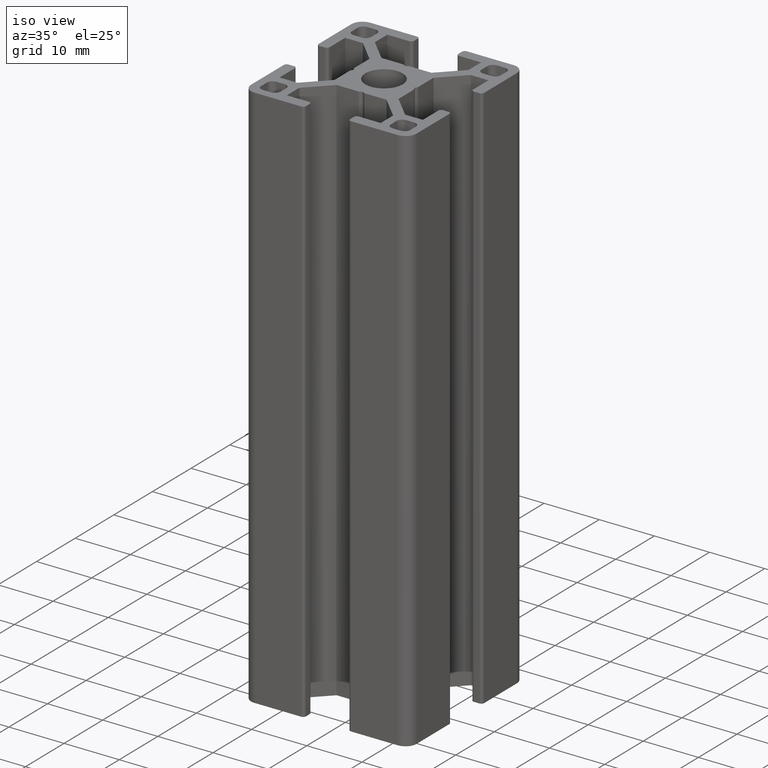
[diagram: clean part render]
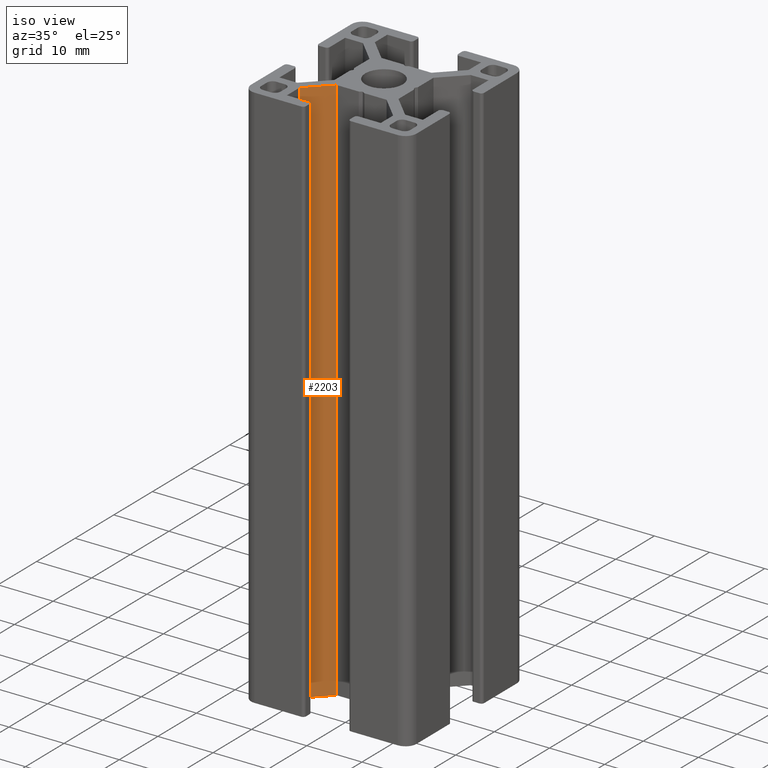
[diagram: same view with one face highlighted and labeled with its STEP entity id]
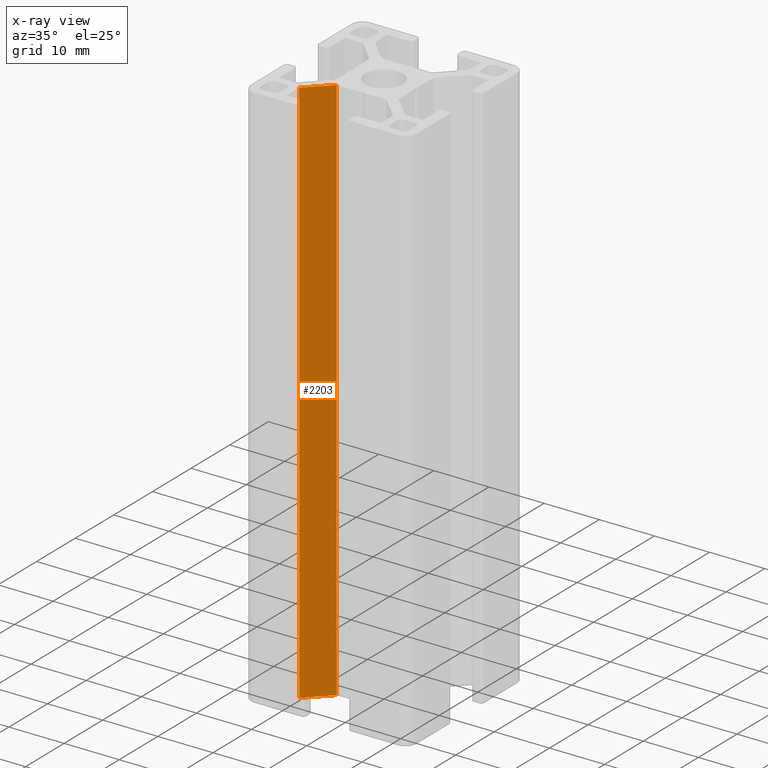
[diagram: x-ray of the same camera — body ghosted, the highlighted face saturated]
A machine part, iso view. The second image highlights one B-rep face of the part: STEP entity #2203.
The next image is the same camera in x-ray: the body ghosted, the highlighted face saturated — about 0% of this face is hidden behind the body in this view.
In plain terms, the highlighted planar face has unit normal (-0.7071, 0.7071, 0).
Its self-contained STEP definition (entity closure, byte-faithful):
#196=FACE_OUTER_BOUND('',#308,.T.);
#308=EDGE_LOOP('',(#1652,#1653,#1654,#1655));
#505=LINE('',#3427,#757);
#507=LINE('',#3431,#759);
#508=LINE('',#3433,#760);
#509=LINE('',#3434,#761);
#757=VECTOR('',#2781,100.);
#759=VECTOR('',#2785,5.61837538309955);
#760=VECTOR('',#2786,100.);
#761=VECTOR('',#2787,5.61837538309955);
#996=VERTEX_POINT('',#3424);
#997=VERTEX_POINT('',#3426);
#998=VERTEX_POINT('',#3430);
#999=VERTEX_POINT('',#3432);
#1269=EDGE_CURVE('',#997,#996,#505,.T.);
#1271=EDGE_CURVE('',#998,#996,#507,.T.);
#1272=EDGE_CURVE('',#999,#998,#508,.T.);
#1273=EDGE_CURVE('',#997,#999,#509,.T.);
#1652=ORIENTED_EDGE('',*,*,#1271,.F.);
#1653=ORIENTED_EDGE('',*,*,#1272,.F.);
#1654=ORIENTED_EDGE('',*,*,#1273,.F.);
#1655=ORIENTED_EDGE('',*,*,#1269,.T.);
#2108=PLANE('',#2358);
#2203=ADVANCED_FACE('',(#196),#2108,.F.);
#2358=AXIS2_PLACEMENT_3D('',#3429,#2783,#2784);
#2781=DIRECTION('',(0.,0.,1.));
#2783=DIRECTION('center_axis',(-0.707106781090112,0.707106781282983,0.));
#2784=DIRECTION('ref_axis',(-0.707106781282983,-0.707106781090112,0.));
#2785=DIRECTION('',(0.707106781282983,0.707106781090112,0.));
#2786=DIRECTION('',(0.,0.,1.));
#2787=DIRECTION('',(-0.707106781282983,-0.707106781090112,0.));
#3424=CARTESIAN_POINT('',(-4.52720354406168,-5.80000203194614,100.));
#3426=CARTESIAN_POINT('',(-4.52720354406168,-5.80000203194614,0.));
#3427=CARTESIAN_POINT('',(-4.52720354406168,-5.80000203194614,0.));
#3429=CARTESIAN_POINT('Origin',(-4.52720354406168,-5.80000203194614,0.));
#3430=CARTESIAN_POINT('',(-8.49999487724475,-9.77279336404559,100.));
#3431=CARTESIAN_POINT('',(-1.94540214965365,-3.21820063824232,100.));
#3432=CARTESIAN_POINT('',(-8.49999487724475,-9.77279336404559,0.));
#3433=CARTESIAN_POINT('',(-8.49999487724475,-9.77279336404559,0.));
#3434=CARTESIAN_POINT('',(-1.94540214965365,-3.21820063824232,0.));